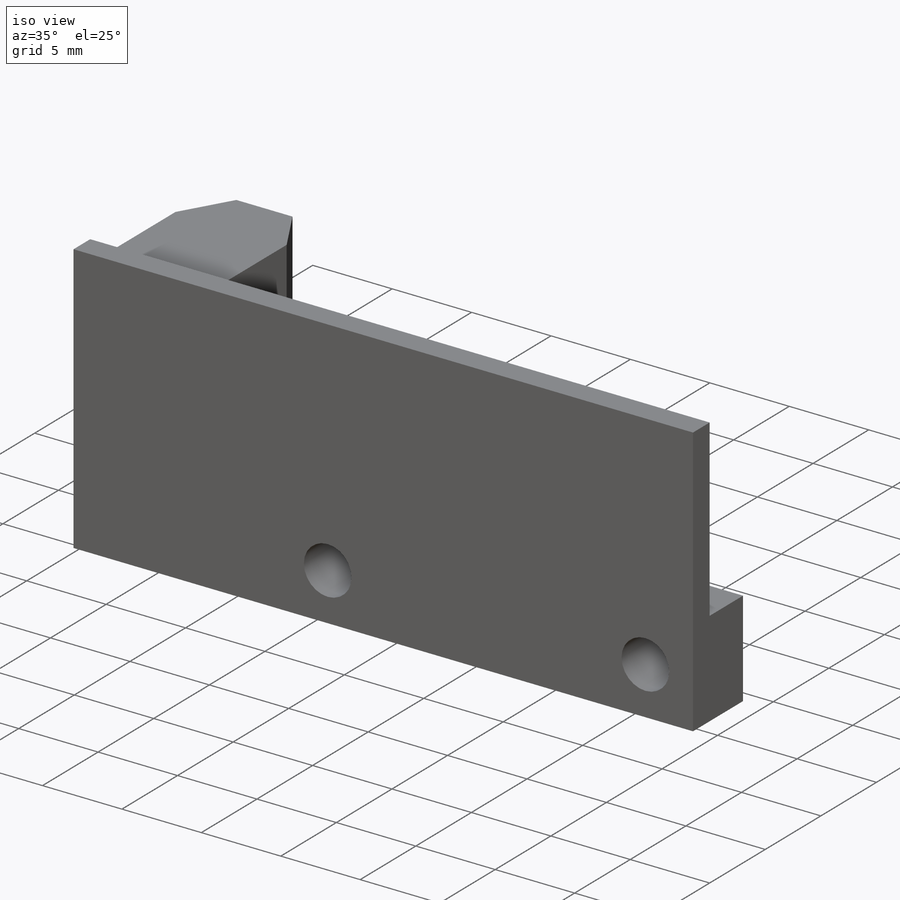
[diagram: iso view]
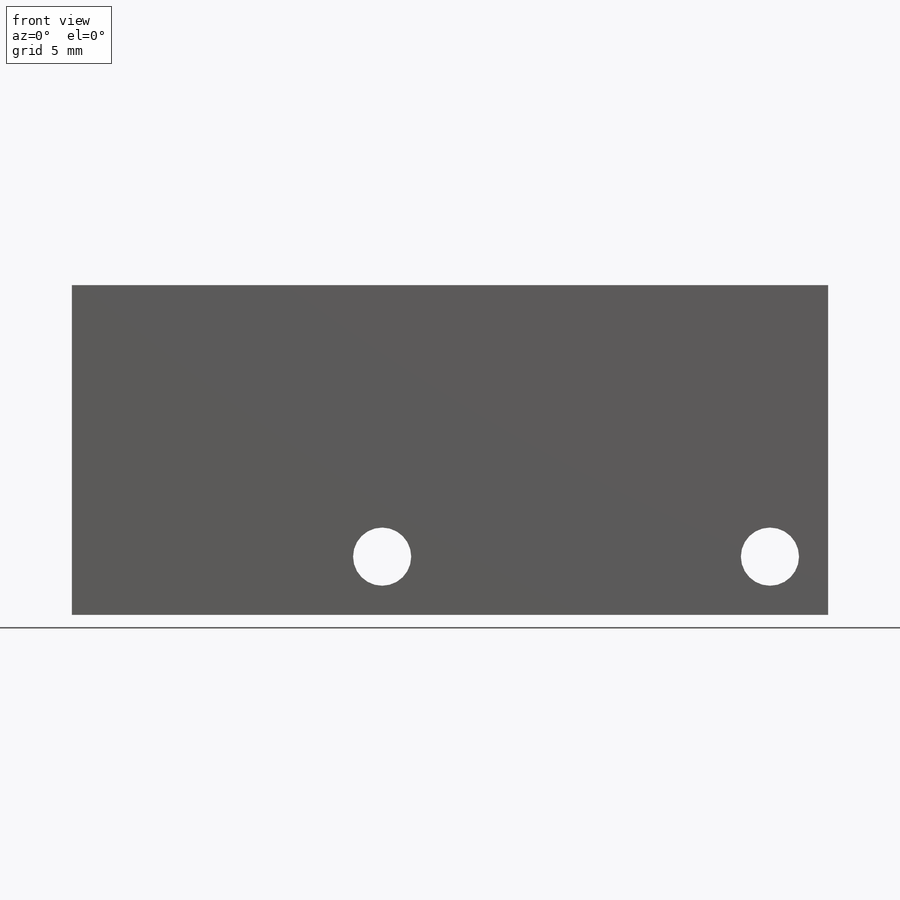
[diagram: front view]
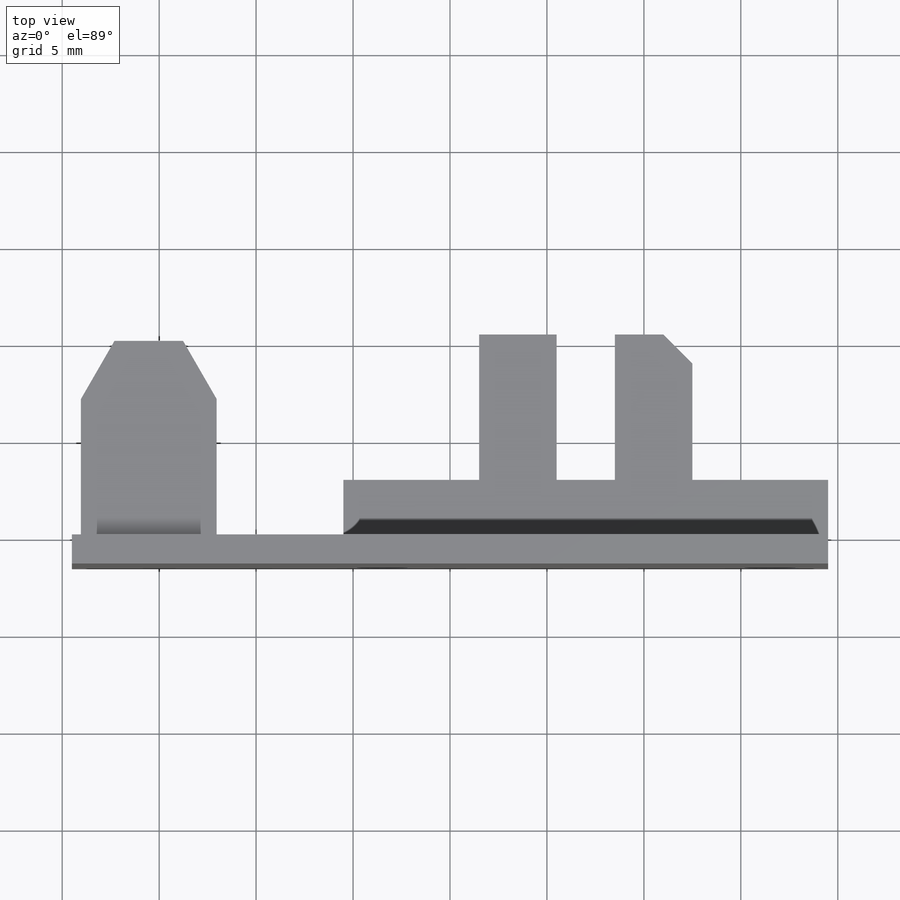
[diagram: top view]
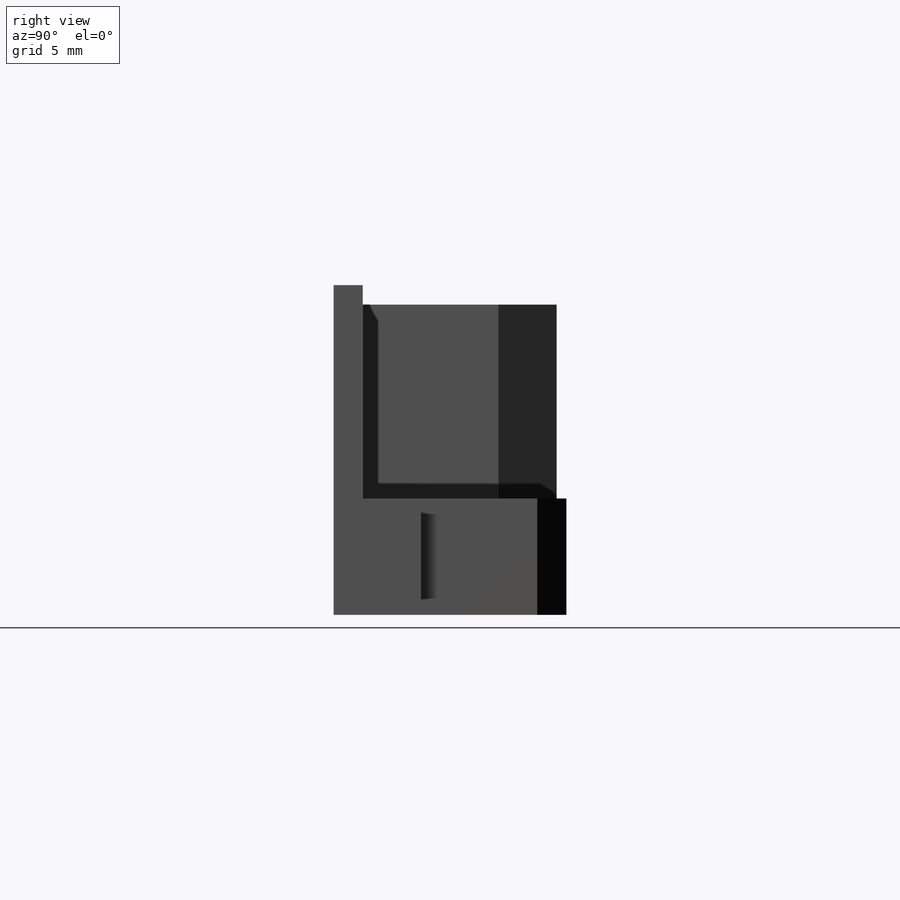
[diagram: right view]
SOLIDWORKS PART (.sldprt)
format: sldprt  version: not decoded by parser v0  size: 196,608 bytes
history: native  units: mm
features: sketch x4, plane x3, extrude x3, chamfer x2, material x1, cut_extrude x1 (+9 scaffold rows collapsed)
feature tree (23):
  scaffold x9  (default folders/planes/origin — collapsed)
  material  "Matériau <non spécifié>"
  plane  "Plan de face"
  plane  "Plan de dessus"
  plane  "Plan de droite"
  sketch  "Esquisse1"  dims[D1=39.0mm D2=17.0mm]
  extrude  "Boss.-Extru.1"  Depth=1.5mm
  sketch  "Esquisse3"  dims[D1=25.0mm D2=3.0mm D3=4.0mm D4=4.0mm D5=3.0mm D6=7.0mm D7=7.0mm D8=7.5mm D9=4.0mm]
  extrude  "Boss.-Extru.2"  Depth=6mm
  sketch  "Esquisse2"  dims[c1.D1=3.0mm c1.D2=3.0mm c1.D3=3.0mm c1.D4=~4.242641mm c2.D3=3.0mm c2.D4=20.0mm c3.D3=3.0mm]
  cut_extrude  "Enlèv. mat.-Extru.1"  [1 undecoded]
  chamfer  "Chanfrein1"  Distance=1.5mm Angle=45deg
  sketch  "Esquisse4"  dims[D1=7.0mm D2=15.0mm]
  extrude  "Boss.-Extru.3"  Depth=10mm
  chamfer  "Chanfrein2"  Distance=3mm Angle=30deg
decode coverage: 9 of 10 modeling features carry decoded parameters
note: ~ marks probable driven/reference dimensions
note: 1 parameter value undecoded
note: suppression state not decoded; provenance and decode notes live in map.json
